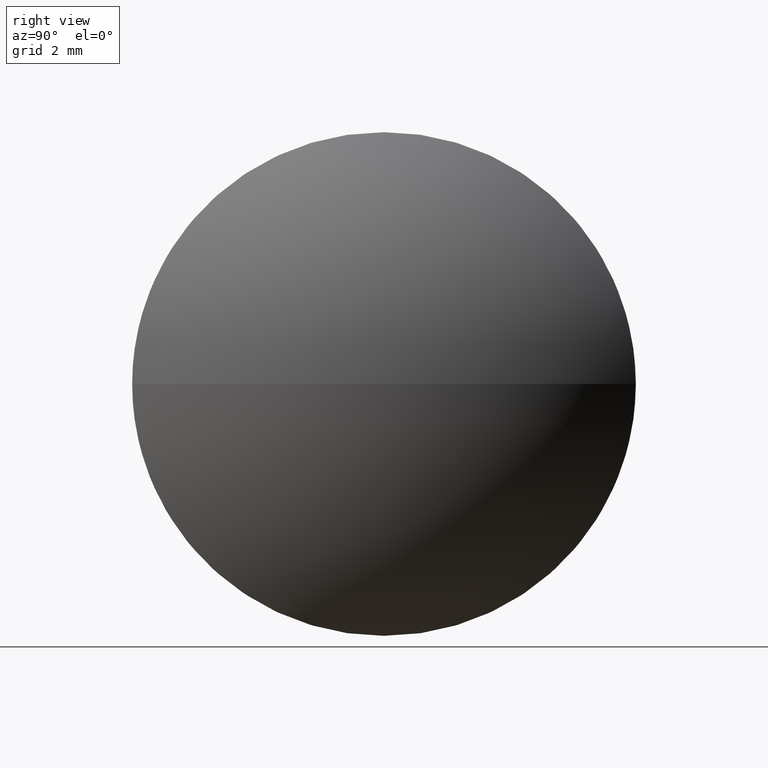
[diagram: clean part render]
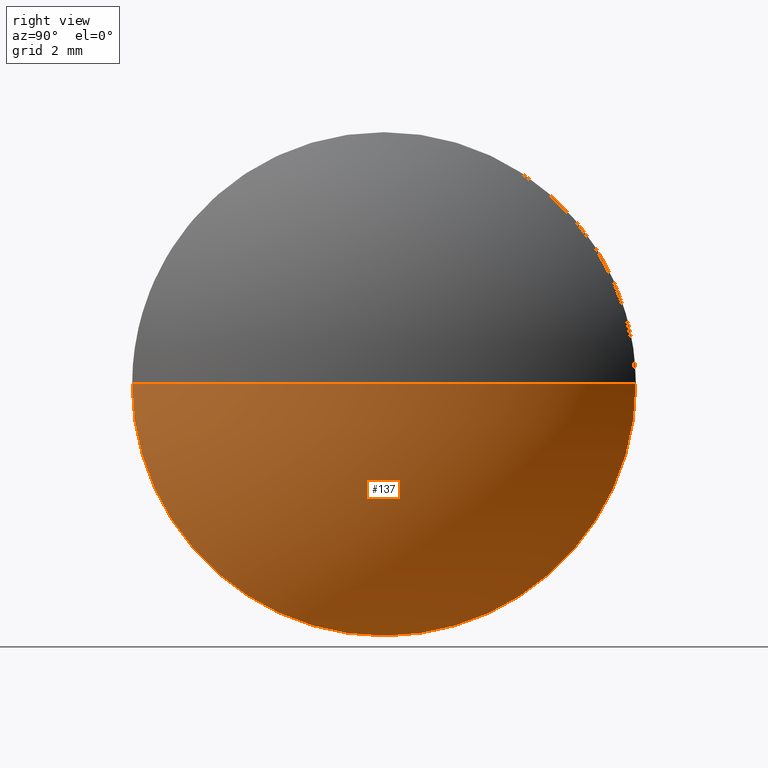
[diagram: same view with one face highlighted and labeled with its STEP entity id]
A machine part, right view. The second image highlights one B-rep face of the part: STEP entity #137.
In plain terms, the highlighted spherical surface has radius 7.25 mm.
Its self-contained STEP definition (entity closure, byte-faithful):
#7 = DIRECTION ( 'NONE',  ( -1.000000000000000000, -0.0000000000000000000, -0.0000000000000000000 ) ) ;
#8 = DIRECTION ( 'NONE',  ( -1.000000000000000000, -0.0000000000000000000, -0.0000000000000000000 ) ) ;
#13 = CARTESIAN_POINT ( 'NONE',  ( 409.8965939749438100, 127.1833303763285700, 0.0000000000000000000 ) ) ;
#19 = CARTESIAN_POINT ( 'NONE',  ( 409.8965939749438100, 117.1833303763285600, -6.123233995736756400E-016 ) ) ;
#21 = DIRECTION ( 'NONE',  ( 0.0000000000000000000, 0.0000000000000000000, 1.000000000000000000 ) ) ;
#24 = ORIENTED_EDGE ( 'NONE', *, *, #87, .F. ) ;
#32 = CIRCLE ( 'NONE', #59, 7.250000000000033800 ) ;
#35 = DIRECTION ( 'NONE',  ( 0.0000000000000000000, 1.000000000000000000, 1.224646799147351200E-016 ) ) ;
#42 = VERTEX_POINT ( 'NONE', #81 ) ;
#44 = VERTEX_POINT ( 'NONE', #56 ) ;
#53 = CARTESIAN_POINT ( 'NONE',  ( 404.6465939749438100, 122.1833303763285400, 0.0000000000000000000 ) ) ;
#56 = CARTESIAN_POINT ( 'NONE',  ( 409.8965939749438100, 122.1833303763285700, -4.999999999999990200 ) ) ;
#59 = AXIS2_PLACEMENT_3D ( 'NONE', #95, #98, #70 ) ;
#62 = DIRECTION ( 'NONE',  ( -0.0000000000000000000, 0.0000000000000000000, -1.000000000000000000 ) ) ;
#69 = EDGE_LOOP ( 'NONE', ( #24, #156, #153, #115 ) ) ;
#70 = DIRECTION ( 'NONE',  ( 1.000000000000000000, 0.0000000000000000000, 0.0000000000000000000 ) ) ;
#71 = AXIS2_PLACEMENT_3D ( 'NONE', #88, #8, #21 ) ;
#80 = VERTEX_POINT ( 'NONE', #13 ) ;
#81 = CARTESIAN_POINT ( 'NONE',  ( 411.8965939749438100, 122.1833303763285400, 0.0000000000000000000 ) ) ;
#87 = EDGE_CURVE ( 'NONE', #42, #80, #32, .T. ) ;
#88 = CARTESIAN_POINT ( 'NONE',  ( 409.8965939749438100, 122.1833303763285700, 0.0000000000000000000 ) ) ;
#93 = CIRCLE ( 'NONE', #184, 7.250000000000048000 ) ;
#95 = CARTESIAN_POINT ( 'NONE',  ( 404.6465939749438100, 122.1833303763285400, 0.0000000000000000000 ) ) ;
#96 = EDGE_CURVE ( 'NONE', #80, #44, #133, .T. ) ;
#98 = DIRECTION ( 'NONE',  ( -0.0000000000000000000, 0.0000000000000000000, 1.000000000000000000 ) ) ;
#100 = CARTESIAN_POINT ( 'NONE',  ( 404.6465939749438100, 122.1833303763285400, 0.0000000000000000000 ) ) ;
#112 = AXIS2_PLACEMENT_3D ( 'NONE', #145, #7, #174 ) ;
#113 = SPHERICAL_SURFACE ( 'NONE', #173, 7.250000000000034600 ) ;
#115 = ORIENTED_EDGE ( 'NONE', *, *, #96, .F. ) ;
#124 = FACE_OUTER_BOUND ( 'NONE', #69, .T. ) ;
#133 = CIRCLE ( 'NONE', #112, 4.999999999999990200 ) ;
#137 = ADVANCED_FACE ( 'NONE', ( #124 ), #113, .T. ) ;
#138 = DIRECTION ( 'NONE',  ( 0.0000000000000000000, 1.224646799147353200E-016, -1.000000000000000000 ) ) ;
#140 = EDGE_CURVE ( 'NONE', #44, #148, #147, .T. ) ;
#145 = CARTESIAN_POINT ( 'NONE',  ( 409.8965939749438100, 122.1833303763285700, 0.0000000000000000000 ) ) ;
#147 = CIRCLE ( 'NONE', #71, 4.999999999999990200 ) ;
#148 = VERTEX_POINT ( 'NONE', #19 ) ;
#153 = ORIENTED_EDGE ( 'NONE', *, *, #140, .F. ) ;
#156 = ORIENTED_EDGE ( 'NONE', *, *, #176, .T. ) ;
#173 = AXIS2_PLACEMENT_3D ( 'NONE', #100, #62, #175 ) ;
#174 = DIRECTION ( 'NONE',  ( 0.0000000000000000000, 0.0000000000000000000, 1.000000000000000000 ) ) ;
#175 = DIRECTION ( 'NONE',  ( 0.0000000000000000000, 1.000000000000000000, 0.0000000000000000000 ) ) ;
#176 = EDGE_CURVE ( 'NONE', #42, #148, #93, .T. ) ;
#184 = AXIS2_PLACEMENT_3D ( 'NONE', #53, #138, #35 ) ;